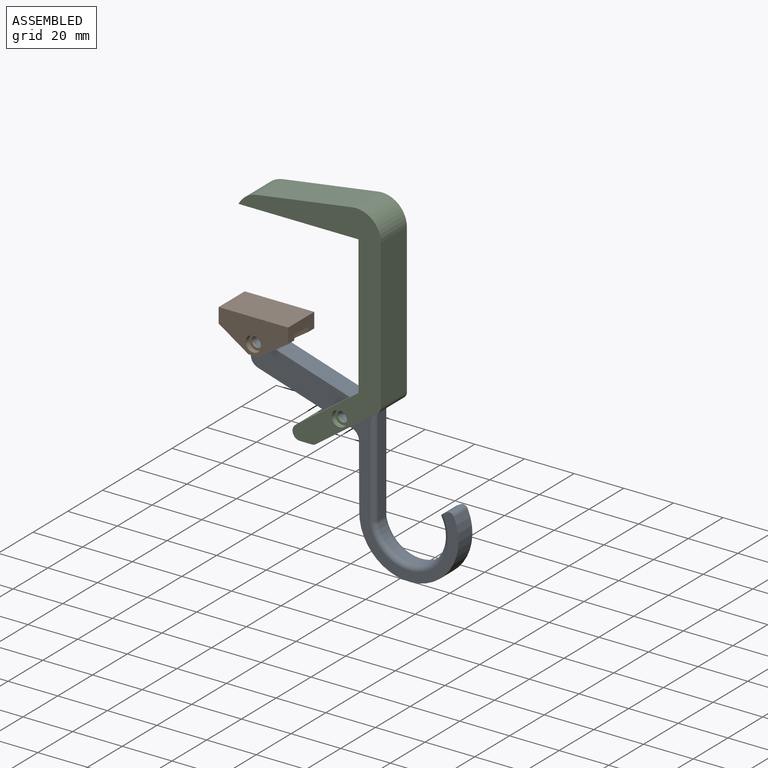
[diagram: assembled view]
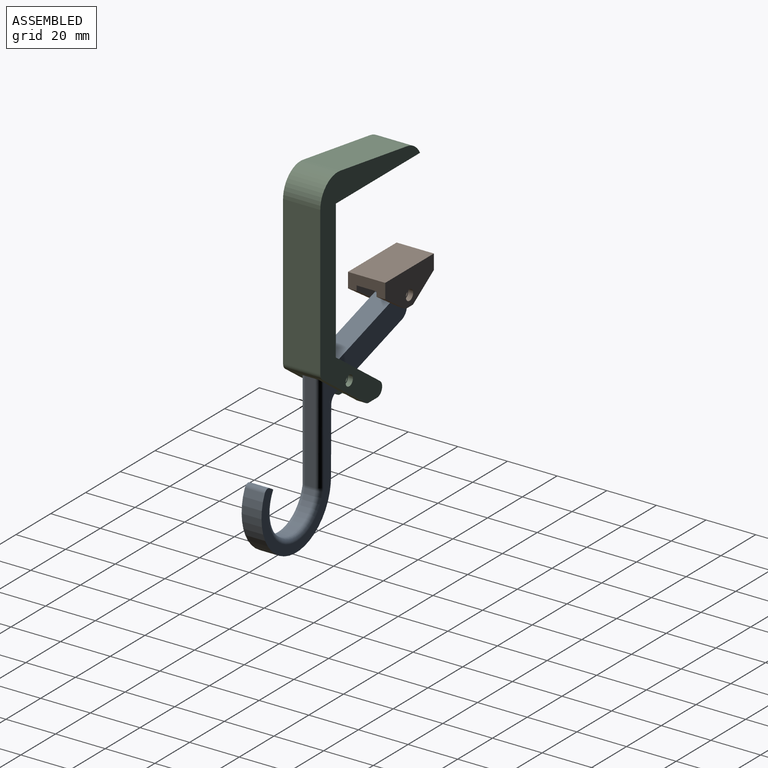
[diagram: assembled view, second angle]
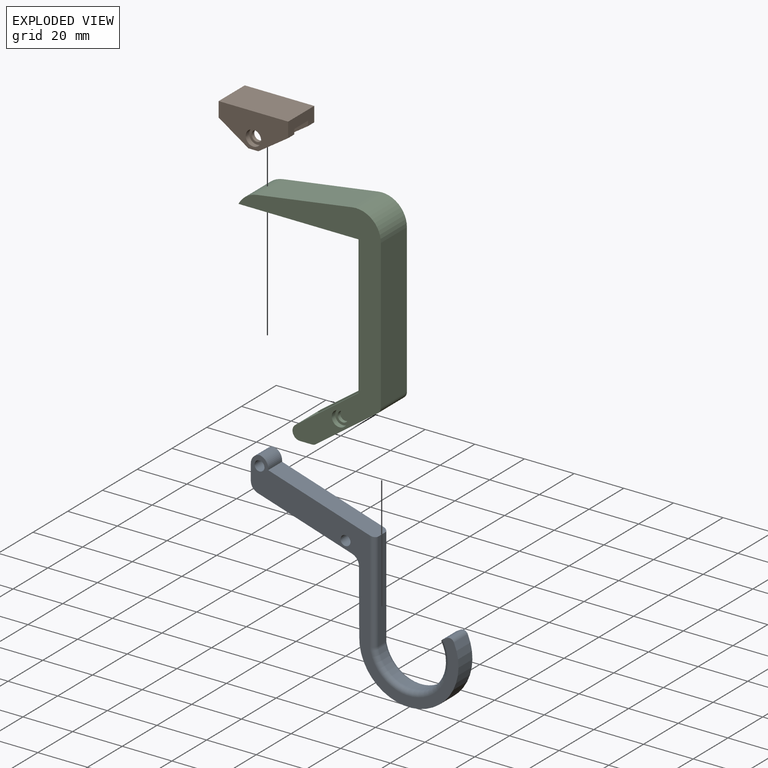
[diagram: exploded view]
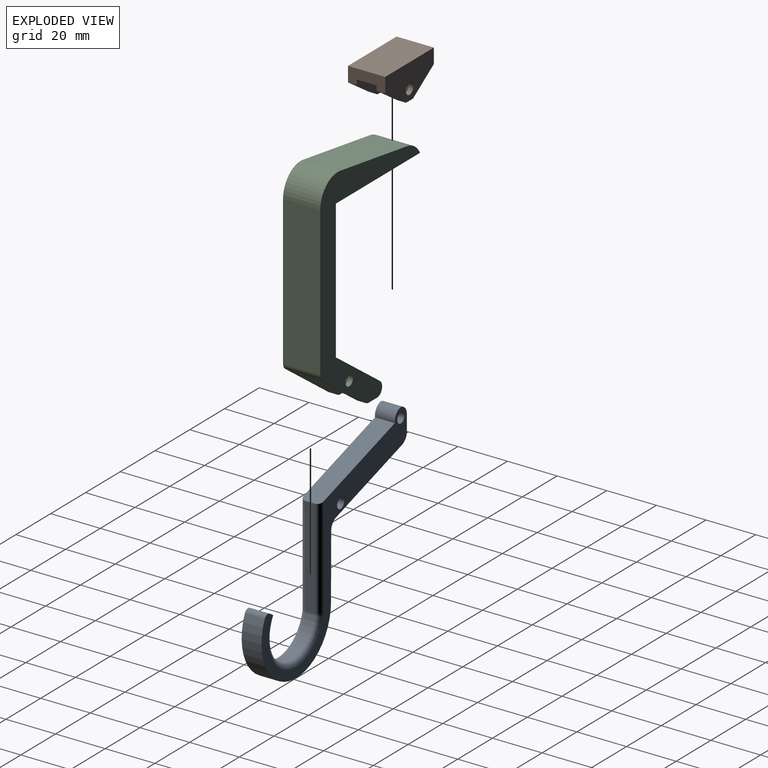
[diagram: exploded view, second angle]
ASSEMBLY  parts=3 mates=2
PART A: 26 faces, bbox 83.7x8x75.7 mm
  f0: plane 37.96x11.9mm, normal (-0.3,0,-0.95), area 318.2mm2, adj f11,f12,f13,f17
  f1: plane 25.56x8mm, normal (-1,0,0), area 204.5mm2, adj f2,f11,f12,f13
  f2: cylinder r=20mm len=40mm, axis (0,1,0), area 575.6mm2, adj f1,f11,f12,f25
  f3: plane 8x1.72mm, normal (-0.52,0,0.85), area 16.1mm2, adj f11,f12,f21,f23,f24,f25
  f4: cylinder r=14mm len=27.64mm, axis (0,1,0), area 186.7mm2, adj f14,f21,f23,f24
  f5: plane 39.95x4mm, normal (1,0,0), area 159.8mm2, adj f6,f14,f18,f20
  f6: plane 42.94x13.46mm, normal (0.3,0,0.95), area 358.2mm2, adj f5,f7,f11,f12,f18,f20
  f7: plane 8x0.59mm, normal (1,0,0), area 4.7mm2, adj f6,f11,f12,f16
  f8: cylinder r=2mm len=8mm, axis (0,1,0), area 100.5mm2, adj f11,f12
  f9: plane 8x6.24mm, normal (-1,0,0), area 50mm2, adj f11,f12,f15,f17
  f10: cylinder r=2mm len=8mm, axis (0,1,0), area 100.5mm2, adj f11,f12
  f11: plane 83.68x75.71mm, normal (0,-1,0), area 896.4mm2, adj f0,f1,f2,f3,f6,f7,f8,f9
  f12: plane 83.68x75.71mm, normal (0,1,0), area 896.4mm2, adj f0,f1,f2,f3,f6,f7,f8,f9
  f13: cylinder r=4mm len=8mm, axis (0,1,0), area 40.4mm2, adj f0,f1,f11,f12
  f14: cylinder r=4mm len=4mm, axis (0,1,0), area 3.7mm2, adj f4,f5,f19,f22
  f15: cylinder r=4mm len=8mm, axis (0,1,0), area 46.3mm2, adj f9,f11,f12,f16
  f16: cylinder r=4mm len=8mm, axis (0,-1,0), area 46.3mm2, adj f7,f11,f12,f15
  f17: cylinder r=4mm len=8mm, axis (0,1,0), area 40.5mm2, adj f0,f9,f11,f12
  f18: cylinder r=2mm len=40.57mm, axis (0,0,-1), area 126.2mm2, adj f5,f6,f11,f19
  f19: torus R=6mm, axis (0,-1,0), area 3.4mm2, adj f11,f14,f18,f21
  f20: cylinder r=2mm len=40.57mm, axis (0,0,1), area 126.2mm2, adj f5,f6,f12,f22
  f21: torus R=16mm, axis (0,-1,0), area 158.1mm2, adj f3,f4,f11,f19,f23
  f22: torus R=6mm, axis (0,-1,0), area 3.4mm2, adj f12,f14,f20,f24
  f23: cylinder r=2mm len=7.99mm, axis (0,1,0), area 18.8mm2, adj f3,f4,f21,f24
  f24: torus R=16mm, axis (0,-1,0), area 158.1mm2, adj f3,f4,f12,f22,f23
  f25: cylinder r=2mm len=8mm, axis (0,1,0), area 26.9mm2, adj f2,f3,f11,f12
PART B: 21 faces, bbox 28x15x14 mm
  f0: cylinder r=1.65mm len=3.3mm, axis (0,1,0), area 10.4mm2, adj f19,f20
  f1: cylinder r=2.1mm len=4.2mm, axis (0,1,0), area 19.8mm2, adj f10,f16
  f2: plane 15x6mm, normal (1,0,0), area 74mm2, adj f3,f5,f6,f7,f8,f10,f12,f15
  f3: plane 28x15mm, normal (0,0,1), area 420mm2, adj f2,f4,f6,f7
  f4: plane 15x6mm, normal (-1,0,0), area 74mm2, adj f3,f5,f6,f7,f8,f10,f13,f14
  f5: plane 28x8mm, normal (0,0,-1), area 224mm2, adj f2,f4,f8,f10
  f6: plane 28x14mm, normal (0,-1,0), area 265.8mm2, adj f2,f3,f4,f11,f13,f15,f17
  f7: plane 28x14mm, normal (0,1,0), area 282.1mm2, adj f2,f3,f4,f9,f12,f14,f18
  f8: plane 28x10mm, normal (0,-1,0), area 169.5mm2, adj f2,f4,f5,f9,f12,f14,f20
  f9: plane 4x3.5mm, normal (0,0,-1), area 14mm2, adj f7,f8,f12,f14
  f10: plane 28x10mm, normal (0,1,0), area 170.1mm2, adj f1,f2,f4,f5,f11,f13,f15
  f11: plane 4x3.5mm, normal (0,0,-1), area 14mm2, adj f6,f10,f13,f15
  f12: plane 12x8mm, normal (0.55,0,-0.83), area 50.5mm2, adj f2,f7,f8,f9
  f13: plane 12x8mm, normal (-0.55,0,-0.83), area 50.5mm2, adj f4,f6,f10,f11
  f14: plane 12x8mm, normal (-0.55,0,-0.83), area 50.5mm2, adj f4,f7,f8,f9
  f15: plane 12x8mm, normal (0.55,0,-0.83), area 50.5mm2, adj f2,f6,f10,f11
  f16: plane 6.2x6.2mm, normal (0,-1,0), area 16.3mm2, adj f1,f17
  f17: cylinder r=3.1mm len=6.2mm, axis (0,-1,0), area 39mm2, adj f6,f16
  f18: cylinder r=2.1mm len=4.2mm, axis (0,1,0), area 26.4mm2, adj f7,f19
  f19: plane 4.2x4.2mm, normal (0,1,0), area 5.3mm2, adj f0,f18
  f20: cone r=2.15mm half-angle=45deg, axis (0,-1,0), area 8.4mm2, adj f0,f8
PART C: 27 faces, bbox 57.4x15x90.8 mm
  f0: cylinder r=1.65mm len=3.3mm, axis (0,1,0), area 10.4mm2, adj f25,f26
  f1: cylinder r=2.1mm len=4.2mm, axis (0,1,0), area 19.8mm2, adj f14,f22
  f2: plane 15x4.74mm, normal (0,0,-1), area 62.9mm2, adj f9,f10,f13,f14,f16,f17,f19,f21
  f3: plane 24.86x17.92mm, normal (0.58,0,-0.81), area 240.4mm2, adj f9,f10,f14,f15,f16,f17,f19,f20
  f4: plane 25.36x18.28mm, normal (-0.58,0,0.81), area 228.9mm2, adj f8,f9,f10,f13,f14,f16,f21
  f5: plane 59.91x15mm, normal (1,0,0), area 898.6mm2, adj f9,f10,f11,f20
  f6: plane 38.52x15mm, normal (-0.15,0,0.99), area 584.2mm2, adj f9,f10,f11,f12
  f7: plane 48.38x15mm, normal (0,0,-1), area 725.7mm2, adj f8,f9,f10,f12
  f8: plane 56x15mm, normal (-1,0,0), area 832.3mm2, adj f4,f7,f9,f10,f14,f16,f18
  f9: plane 90.83x57.38mm, normal (0,-1,0), area 1244.8mm2, adj f2,f3,f4,f5,f6,f7,f8,f11
  f10: plane 90.83x57.38mm, normal (0,1,0), area 1261.2mm2, adj f2,f3,f4,f5,f6,f7,f8,f11
  f11: cylinder r=10mm len=15mm, axis (0,1,0), area 257.9mm2, adj f5,f6,f9,f10
  f12: cylinder r=10mm len=15mm, axis (0,-1,0), area 141mm2, adj f6,f7,f9,f10
  f13: plane 8x6.17mm, normal (0.81,0,0.58), area 60.8mm2, adj f2,f4,f14,f16
  f14: plane 29.47x24.68mm, normal (0,1,0), area 248.3mm2, adj f1,f2,f3,f4,f8,f13,f15,f18
  f15: plane 8x6.33mm, normal (-0.81,0,-0.58), area 62.4mm2, adj f3,f14,f16,f18
  f16: plane 29.47x24.68mm, normal (0,-1,0), area 247.7mm2, adj f2,f3,f4,f8,f13,f15,f17,f18
  f17: cylinder r=3mm len=3.5mm, axis (0,1,0), area 6.6mm2, adj f2,f3,f10,f16
  f18: cylinder r=3mm len=8mm, axis (0,-1,0), area 15mm2, adj f8,f14,f15,f16
  f19: cylinder r=3mm len=3.5mm, axis (0,1,0), area 6.6mm2, adj f2,f3,f9,f14
  f20: cylinder r=3mm len=15mm, axis (0,1,0), area 42.6mm2, adj f3,f5,f9,f10
  f21: cylinder r=3mm len=15mm, axis (0,1,0), area 113.3mm2, adj f2,f4,f9,f10
  f22: plane 6.2x6.2mm, normal (0,-1,0), area 16.3mm2, adj f1,f23
  f23: cylinder r=3.1mm len=6.2mm, axis (0,-1,0), area 39mm2, adj f9,f22
  f24: cylinder r=2.1mm len=4.2mm, axis (0,1,0), area 26.4mm2, adj f10,f25
  f25: plane 4.2x4.2mm, normal (0,1,0), area 5.3mm2, adj f0,f24
  f26: cone r=1.65mm half-angle=45deg, axis (0,-1,0), area 8.4mm2, adj f0,f16
PLACE A t=(-13.64,-0.97,-3.84)mm
PLACE B t=(-13.64,-0.97,-3.84)mm
PLACE C t=(-13.76,-0.97,-5.96)mm
MATE revolute A.f10 <-> B.f0  axis (0,-1,0) through (-37.23,-4.97,-60.43)mm
MATE revolute A.f8 <-> C.f0  axis (0,-1,0) through (-2.56,-4.97,-78.34)mm
